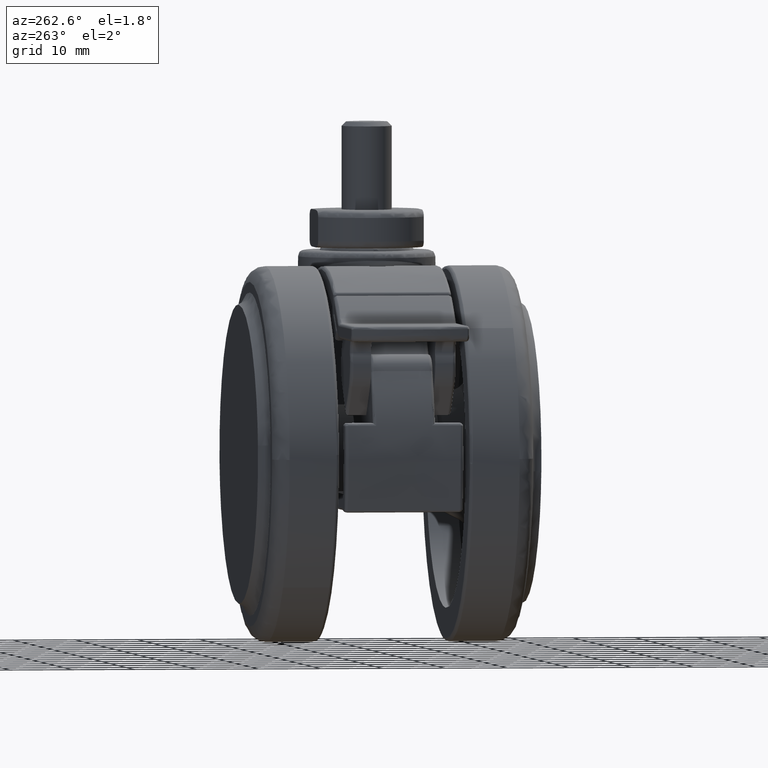
[diagram: clean part render]
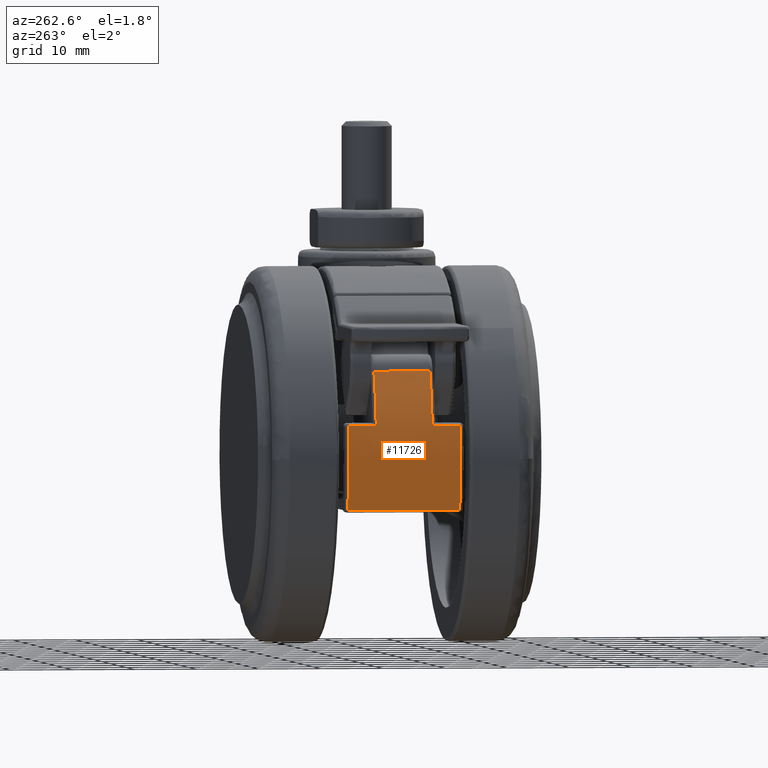
[diagram: same view with one face highlighted and labeled with its STEP entity id]
A machine part, auxiliary view. The second image highlights one B-rep face of the part: STEP entity #11726.
In plain terms, the highlighted face is a freeform B-spline surface patch.
Its self-contained STEP definition (entity closure, byte-faithful):
#10979=CARTESIAN_POINT('',(-26.531456006809702,-4.500000000000060,14.002922629177160));
#10980=VERTEX_POINT('',#10979);
#11115=CARTESIAN_POINT('',(-29.516047272747649,-4.499999999999949,5.366838305084770));
#11116=VERTEX_POINT('',#11115);
#11117=CARTESIAN_POINT('',(-29.516047272747670,-4.499999999999949,5.366838305084763));
#11118=CARTESIAN_POINT('',(-28.689097534678137,-4.499999999999949,9.914820967040701));
#11119=CARTESIAN_POINT('',(-26.531456006809709,-4.499999999999949,14.002922629177140));
#11127=(BOUNDED_CURVE()B_SPLINE_CURVE(2,(#11117,#11118,#11119),.UNSPECIFIED.,.F.,.U.)CURVE()GEOMETRIC_REPRESENTATION_ITEM()QUASI_UNIFORM_CURVE()RATIONAL_B_SPLINE_CURVE((1.0,0.988336180788823,1.0))REPRESENTATION_ITEM(''));
#11128=EDGE_CURVE('',#11116,#10980,#11127,.T.);
#11173=CARTESIAN_POINT('',(-29.516047272747649,-8.999999999999901,5.366838305084770));
#11174=VERTEX_POINT('',#11173);
#11188=CARTESIAN_POINT('',(-28.875805148137001,-8.999999999999901,-8.135593220338990));
#11189=VERTEX_POINT('',#11188);
#11190=CARTESIAN_POINT('',(-28.875805148136980,-8.999999999999901,-8.135593220339004));
#11191=CARTESIAN_POINT('',(-30.757065731968698,-8.999999999999901,-1.458401701497109));
#11192=CARTESIAN_POINT('',(-29.516047272747670,-8.999999999999901,5.366838305084763));
#11200=(BOUNDED_CURVE()B_SPLINE_CURVE(2,(#11190,#11191,#11192),.UNSPECIFIED.,.F.,.U.)CURVE()GEOMETRIC_REPRESENTATION_ITEM()QUASI_UNIFORM_CURVE()RATIONAL_B_SPLINE_CURVE((1.0,0.974290971955606,1.0))REPRESENTATION_ITEM(''));
#11201=EDGE_CURVE('',#11189,#11174,#11200,.T.);
#11433=CARTESIAN_POINT('',(-29.516047272747649,-8.999999999999901,5.366838305084770));
#11434=CARTESIAN_POINT('',(-29.516047272747649,-4.499999999999949,5.366838305084770));
#11435=QUASI_UNIFORM_CURVE('',1,(#11433,#11434),.UNSPECIFIED.,.F.,.U.);
#11436=EDGE_CURVE('',#11174,#11116,#11435,.T.);
#11544=CARTESIAN_POINT('',(-26.531456006809702,4.499999999999949,14.002922629177160));
#11545=VERTEX_POINT('',#11544);
#11561=CARTESIAN_POINT('',(-26.531456006809702,4.499999999999949,14.002922629177160));
#11562=CARTESIAN_POINT('',(-26.531456006809702,-4.500000000000060,14.002922629177160));
#11563=QUASI_UNIFORM_CURVE('',1,(#11561,#11562),.UNSPECIFIED.,.F.,.U.);
#11564=EDGE_CURVE('',#11545,#10980,#11563,.T.);
#11664=CARTESIAN_POINT('',(-28.583734165268691,9.449999999999898,-9.108794715507141));
#11665=CARTESIAN_POINT('',(-28.583734165268691,-9.461249999999900,-9.108794715507141));
#11666=CARTESIAN_POINT('',(-32.603614051327526,9.449999999999896,3.505736803553332));
#11667=CARTESIAN_POINT('',(-32.603614051327526,-9.461249999999899,3.505736803553332));
#11668=CARTESIAN_POINT('',(-25.993851740984113,9.449999999999898,14.977305220490665));
#11669=CARTESIAN_POINT('',(-25.993851740984113,-9.461249999999902,14.977305220490665));
#11677=(BOUNDED_SURFACE()B_SPLINE_SURFACE(1,2,((#11664,#11666,#11668),(#11665,#11667,#11669)),.UNSPECIFIED.,.F.,.F.,.U.)B_SPLINE_SURFACE_WITH_KNOTS((2,2),(3,3),(0.0,18.911249999999800),(0.0,25.301792221373269),.UNSPECIFIED.)GEOMETRIC_REPRESENTATION_ITEM()RATIONAL_B_SPLINE_SURFACE(((1.0,0.910881235862805,0.991299594825643),(1.0,0.910881235862805,0.991299594825643)))REPRESENTATION_ITEM('')SURFACE());
#11678=ORIENTED_EDGE('',*,*,#11564,.F.);
#11679=CARTESIAN_POINT('',(-29.516047272747599,4.499999999999949,5.366838305085140));
#11680=VERTEX_POINT('',#11679);
#11681=CARTESIAN_POINT('',(-26.531456006809702,4.499999999999949,14.002922629177149));
#11682=CARTESIAN_POINT('',(-28.689097534678044,4.499999999999949,9.914820967040885));
#11683=CARTESIAN_POINT('',(-29.516047272747599,4.499999999999949,5.366838305085142));
#11691=(BOUNDED_CURVE()B_SPLINE_CURVE(2,(#11681,#11682,#11683),.UNSPECIFIED.,.F.,.U.)CURVE()GEOMETRIC_REPRESENTATION_ITEM()QUASI_UNIFORM_CURVE()RATIONAL_B_SPLINE_CURVE((1.0,0.988336180788824,1.0))REPRESENTATION_ITEM(''));
#11692=EDGE_CURVE('',#11545,#11680,#11691,.T.);
#11693=ORIENTED_EDGE('',*,*,#11692,.T.);
#11694=CARTESIAN_POINT('',(-29.516047272747599,8.999999999999901,5.366838305085140));
#11695=VERTEX_POINT('',#11694);
#11696=CARTESIAN_POINT('',(-29.516047272747599,4.499999999999949,5.366838305085140));
#11697=CARTESIAN_POINT('',(-29.516047272747599,8.999999999999901,5.366838305085140));
#11698=QUASI_UNIFORM_CURVE('',1,(#11696,#11697),.UNSPECIFIED.,.F.,.U.);
#11699=EDGE_CURVE('',#11680,#11695,#11698,.T.);
#11700=ORIENTED_EDGE('',*,*,#11699,.T.);
#11701=CARTESIAN_POINT('',(-28.875805148137001,8.999999999999901,-8.135593220338990));
#11702=VERTEX_POINT('',#11701);
#11703=CARTESIAN_POINT('',(-29.516047272747599,8.999999999999901,5.366838305085138));
#11704=CARTESIAN_POINT('',(-30.757065731968751,8.999999999999901,-1.458401701496911));
#11705=CARTESIAN_POINT('',(-28.875805148136980,8.999999999999901,-8.135593220338997));
#11713=(BOUNDED_CURVE()B_SPLINE_CURVE(2,(#11703,#11704,#11705),.UNSPECIFIED.,.F.,.U.)CURVE()GEOMETRIC_REPRESENTATION_ITEM()QUASI_UNIFORM_CURVE()RATIONAL_B_SPLINE_CURVE((1.0,0.974290971955604,1.0))REPRESENTATION_ITEM(''));
#11714=EDGE_CURVE('',#11695,#11702,#11713,.T.);
#11715=ORIENTED_EDGE('',*,*,#11714,.T.);
#11716=CARTESIAN_POINT('',(-28.875805148137001,8.999999999999901,-8.135593220338990));
#11717=CARTESIAN_POINT('',(-28.875805148137001,-8.999999999999901,-8.135593220338990));
#11718=QUASI_UNIFORM_CURVE('',1,(#11716,#11717),.UNSPECIFIED.,.F.,.U.);
#11719=EDGE_CURVE('',#11702,#11189,#11718,.T.);
#11720=ORIENTED_EDGE('',*,*,#11719,.T.);
#11721=ORIENTED_EDGE('',*,*,#11201,.T.);
#11722=ORIENTED_EDGE('',*,*,#11436,.T.);
#11723=ORIENTED_EDGE('',*,*,#11128,.T.);
#11724=EDGE_LOOP('',(#11678,#11693,#11700,#11715,#11720,#11721,#11722,#11723));
#11725=FACE_OUTER_BOUND('',#11724,.T.);
#11726=ADVANCED_FACE('',(#11725),#11677,.T.);